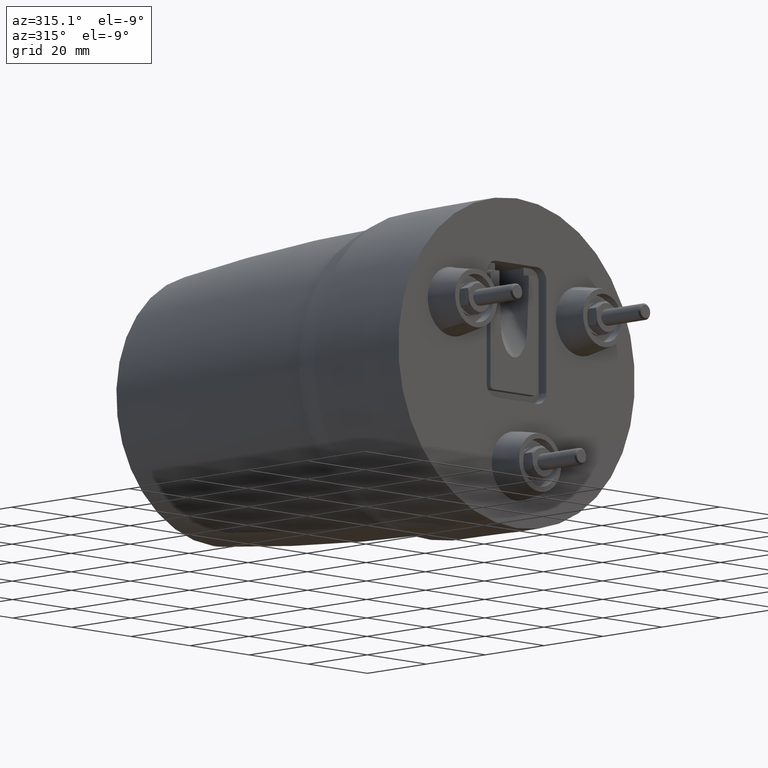
[diagram: clean part render]
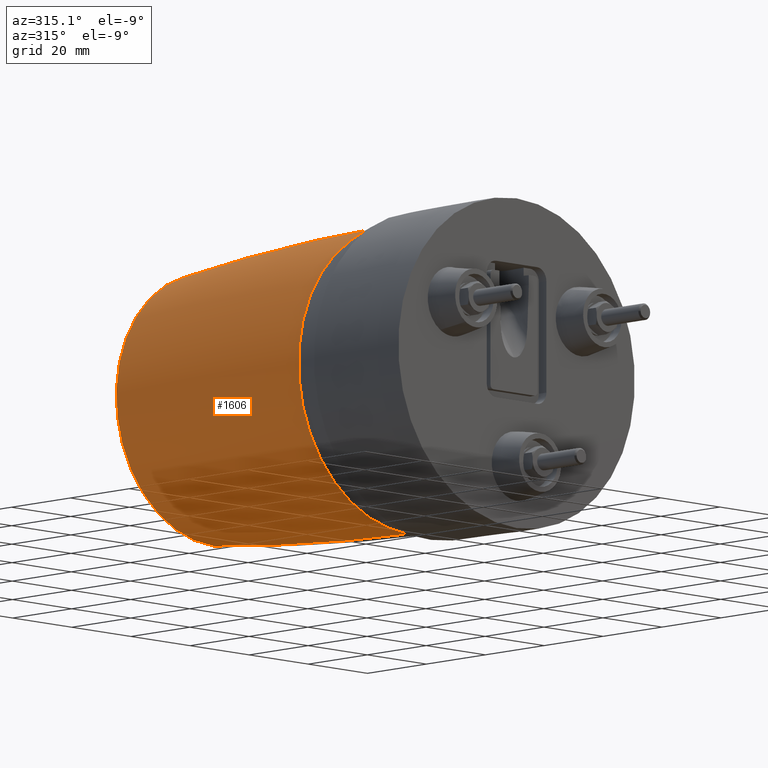
[diagram: same view with one face highlighted and labeled with its STEP entity id]
A machine part, auxiliary view. The second image highlights one B-rep face of the part: STEP entity #1606.
In plain terms, the highlighted toroidal blend (fillet) surface has major radius 612.632 mm and minor (blend) radius 650 mm.
Its self-contained STEP definition (entity closure, byte-faithful):
#30 = AXIS2_PLACEMENT_3D ( 'NONE', #3694, #1236, #838 ) ;
#51 = CARTESIAN_POINT ( 'NONE',  ( 3.911683560049779334E-17, 111.9574960022395942, -32.79746382458340292 ) ) ;
#131 = DIRECTION ( 'NONE',  ( -1.000000000000000000, 0.000000000000000000, -1.224646799147353207E-16 ) ) ;
#223 = FACE_OUTER_BOUND ( 'NONE', #936, .T. ) ;
#247 = DIRECTION ( 'NONE',  ( 0.000000000000000000, 0.000000000000000000, 1.000000000000000000 ) ) ;
#279 = DIRECTION ( 'NONE',  ( 0.000000000000000000, 0.000000000000000000, -1.000000000000000000 ) ) ;
#621 = AXIS2_PLACEMENT_3D ( 'NONE', #2700, #131, #4373 ) ;
#669 = TOROIDAL_SURFACE ( 'NONE', #3269, -612.6321985493580087, 650.0000001554939217 ) ;
#676 = DIRECTION ( 'NONE',  ( 0.000000000000000000, -1.000000000000000000, 0.000000000000000000 ) ) ;
#688 = VERTEX_POINT ( 'NONE', #3676 ) ;
#838 = DIRECTION ( 'NONE',  ( 0.000000000000000000, 0.000000000000000000, -1.000000000000000000 ) ) ;
#913 = CIRCLE ( 'NONE', #3531, 32.79746382458339582 ) ;
#936 = EDGE_LOOP ( 'NONE', ( #1879, #4440, #4149, #4287, #2395 ) ) ;
#1165 = EDGE_CURVE ( 'NONE', #1983, #3232, #2050, .T. ) ;
#1236 = DIRECTION ( 'NONE',  ( 1.000000000000000000, -0.000000000000000000, 0.000000000000000000 ) ) ;
#1284 = AXIS2_PLACEMENT_3D ( 'NONE', #2097, #3037, #247 ) ;
#1290 = AXIS2_PLACEMENT_3D ( 'NONE', #3759, #4098, #2025 ) ;
#1606 = ADVANCED_FACE ( 'NONE', ( #223 ), #669, .T. ) ;
#1754 = DIRECTION ( 'NONE',  ( 0.09983341664186271003, 0.000000000000000000, -0.9950041652785239776 ) ) ;
#1873 = CARTESIAN_POINT ( 'NONE',  ( -4.251983009644433934E-15, 111.9574960022395942, 32.79746382458340292 ) ) ;
#1879 = ORIENTED_EDGE ( 'NONE', *, *, #2426, .T. ) ;
#1906 = EDGE_CURVE ( 'NONE', #688, #3934, #2978, .T. ) ;
#1983 = VERTEX_POINT ( 'NONE', #2310 ) ;
#2025 = DIRECTION ( 'NONE',  ( 0.09983341664186271003, 0.000000000000000000, -0.9950041652785239776 ) ) ;
#2050 = CIRCLE ( 'NONE', #30, 650.0000001554939217 ) ;
#2097 = CARTESIAN_POINT ( 'NONE',  ( 0.000000000000000000, 45.60319136799999740, 0.000000000000000000 ) ) ;
#2310 = CARTESIAN_POINT ( 'NONE',  ( 0.000000000000000000, 45.60319136799999740, -37.28151479199999585 ) ) ;
#2395 = ORIENTED_EDGE ( 'NONE', *, *, #1165, .F. ) ;
#2426 = EDGE_CURVE ( 'NONE', #1983, #688, #2693, .T. ) ;
#2492 = CIRCLE ( 'NONE', #1290, 32.79746382458339582 ) ;
#2679 = VERTEX_POINT ( 'NONE', #3783 ) ;
#2693 = CIRCLE ( 'NONE', #1284, 37.28151479199999585 ) ;
#2700 = CARTESIAN_POINT ( 'NONE',  ( 7.502580610080770930E-14, 35.01237398751774776, -612.6321985493580087 ) ) ;
#2705 = EDGE_CURVE ( 'NONE', #2679, #3232, #2492, .T. ) ;
#2848 = EDGE_CURVE ( 'NONE', #3934, #2679, #913, .T. ) ;
#2978 = CIRCLE ( 'NONE', #621, 650.0000001554939217 ) ;
#3037 = DIRECTION ( 'NONE',  ( 0.000000000000000000, 1.000000000000000000, 0.000000000000000000 ) ) ;
#3232 = VERTEX_POINT ( 'NONE', #51 ) ;
#3269 = AXIS2_PLACEMENT_3D ( 'NONE', #4485, #3793, #279 ) ;
#3531 = AXIS2_PLACEMENT_3D ( 'NONE', #4600, #676, #1754 ) ;
#3676 = CARTESIAN_POINT ( 'NONE',  ( -4.708614067822110311E-15, 45.60319136799999740, 37.28151479199999585 ) ) ;
#3694 = CARTESIAN_POINT ( 'NONE',  ( 0.000000000000000000, 35.01237398751774776, 612.6321985493580087 ) ) ;
#3759 = CARTESIAN_POINT ( 'NONE',  ( -5.000000000000000105E-09, 111.9574960022395942, 0.000000000000000000 ) ) ;
#3783 = CARTESIAN_POINT ( 'NONE',  ( -3.274282874054796455, 111.9574960022395942, 32.63361311585617841 ) ) ;
#3793 = DIRECTION ( 'NONE',  ( 0.000000000000000000, 1.000000000000000000, 0.000000000000000000 ) ) ;
#3934 = VERTEX_POINT ( 'NONE', #1873 ) ;
#4098 = DIRECTION ( 'NONE',  ( 0.000000000000000000, -1.000000000000000000, 0.000000000000000000 ) ) ;
#4149 = ORIENTED_EDGE ( 'NONE', *, *, #2848, .T. ) ;
#4287 = ORIENTED_EDGE ( 'NONE', *, *, #2705, .T. ) ;
#4373 = DIRECTION ( 'NONE',  ( -1.224646799147353454E-16, 0.000000000000000000, 1.000000000000000000 ) ) ;
#4440 = ORIENTED_EDGE ( 'NONE', *, *, #1906, .T. ) ;
#4485 = CARTESIAN_POINT ( 'NONE',  ( 0.000000000000000000, 35.01237398751774776, 0.000000000000000000 ) ) ;
#4600 = CARTESIAN_POINT ( 'NONE',  ( -5.000000000000000105E-09, 111.9574960022395942, 0.000000000000000000 ) ) ;